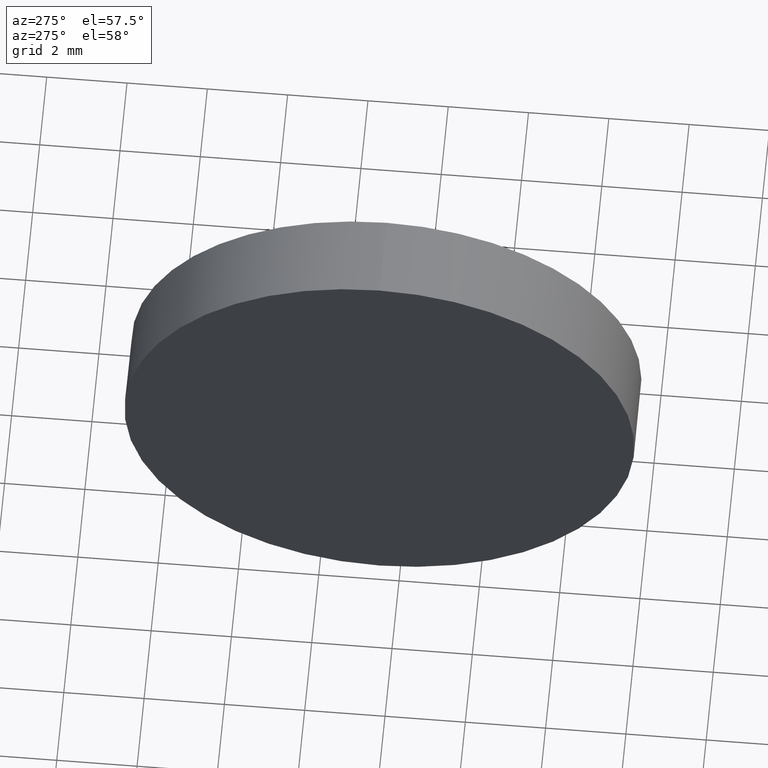
[diagram: clean part render]
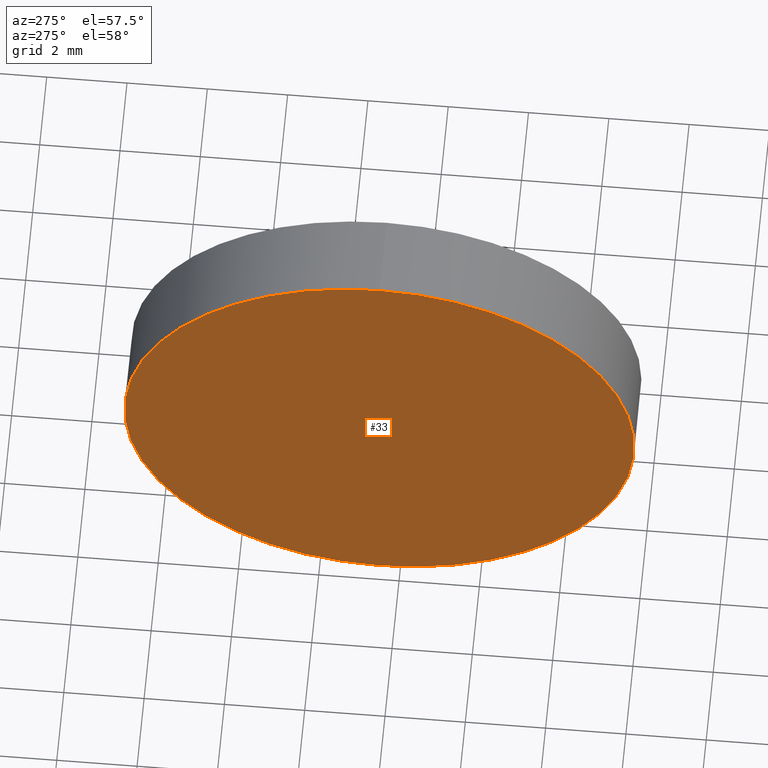
[diagram: same view with one face highlighted and labeled with its STEP entity id]
A machine part, auxiliary view. The second image highlights one B-rep face of the part: STEP entity #33.
In plain terms, the highlighted planar face has unit normal (1, 0, 0).
Its self-contained STEP definition (entity closure, byte-faithful):
#1 = DIRECTION ( 'NONE',  ( 1.000000000000000000, 0.0000000000000000000, 0.0000000000000000000 ) ) ;
#7 = ORIENTED_EDGE ( 'NONE', *, *, #71, .T. ) ;
#33 = ADVANCED_FACE ( 'NONE', ( #175 ), #152, .F. ) ;
#45 = CARTESIAN_POINT ( 'NONE',  ( 368.2318744499828000, 178.5090512951935900, 0.0000000000000000000 ) ) ;
#65 = VERTEX_POINT ( 'NONE', #121 ) ;
#71 = EDGE_CURVE ( 'NONE', #65, #172, #132, .T. ) ;
#81 = AXIS2_PLACEMENT_3D ( 'NONE', #45, #179, #109 ) ;
#85 = AXIS2_PLACEMENT_3D ( 'NONE', #153, #97, #154 ) ;
#86 = CIRCLE ( 'NONE', #81, 6.349999999999994300 ) ;
#97 = DIRECTION ( 'NONE',  ( -1.000000000000000000, -0.0000000000000000000, -0.0000000000000000000 ) ) ;
#103 = EDGE_CURVE ( 'NONE', #172, #65, #86, .T. ) ;
#104 = ORIENTED_EDGE ( 'NONE', *, *, #103, .T. ) ;
#109 = DIRECTION ( 'NONE',  ( 0.0000000000000000000, 0.0000000000000000000, 1.000000000000000000 ) ) ;
#114 = AXIS2_PLACEMENT_3D ( 'NONE', #161, #1, #176 ) ;
#121 = CARTESIAN_POINT ( 'NONE',  ( 368.2318744499828000, 178.5090512951935900, 6.349999999999994300 ) ) ;
#132 = CIRCLE ( 'NONE', #85, 6.349999999999994300 ) ;
#137 = CARTESIAN_POINT ( 'NONE',  ( 368.2318744499828000, 178.5090512951935900, -6.349999999999994300 ) ) ;
#152 = PLANE ( 'NONE',  #114 ) ;
#153 = CARTESIAN_POINT ( 'NONE',  ( 368.2318744499828000, 178.5090512951935900, 0.0000000000000000000 ) ) ;
#154 = DIRECTION ( 'NONE',  ( 0.0000000000000000000, 0.0000000000000000000, 1.000000000000000000 ) ) ;
#161 = CARTESIAN_POINT ( 'NONE',  ( 368.2318744499828000, 178.5090512951935900, 0.0000000000000000000 ) ) ;
#172 = VERTEX_POINT ( 'NONE', #137 ) ;
#175 = FACE_OUTER_BOUND ( 'NONE', #180, .T. ) ;
#176 = DIRECTION ( 'NONE',  ( 0.0000000000000000000, 0.0000000000000000000, -1.000000000000000000 ) ) ;
#179 = DIRECTION ( 'NONE',  ( -1.000000000000000000, -0.0000000000000000000, -0.0000000000000000000 ) ) ;
#180 = EDGE_LOOP ( 'NONE', ( #7, #104 ) ) ;